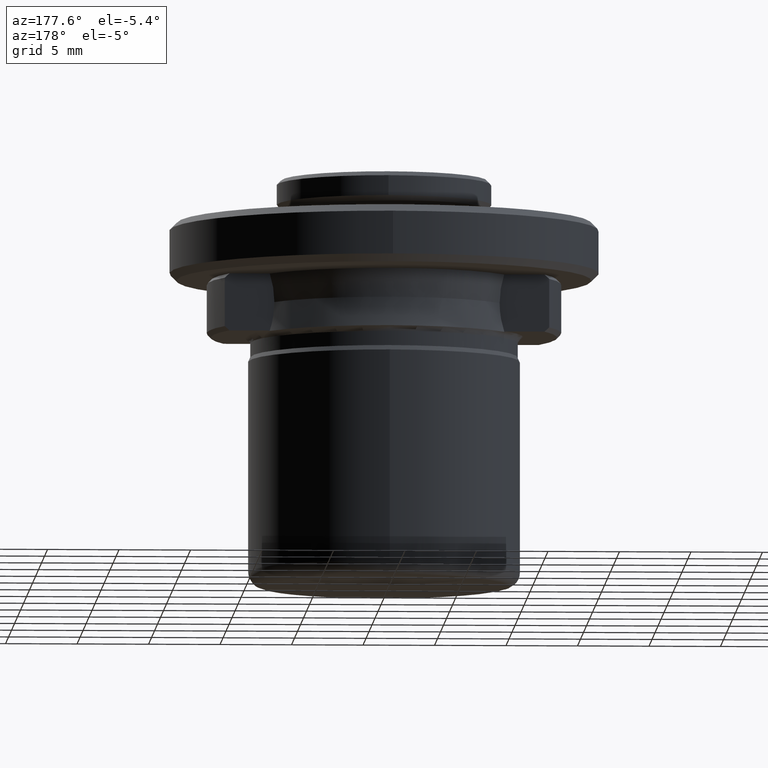
[diagram: clean part render]
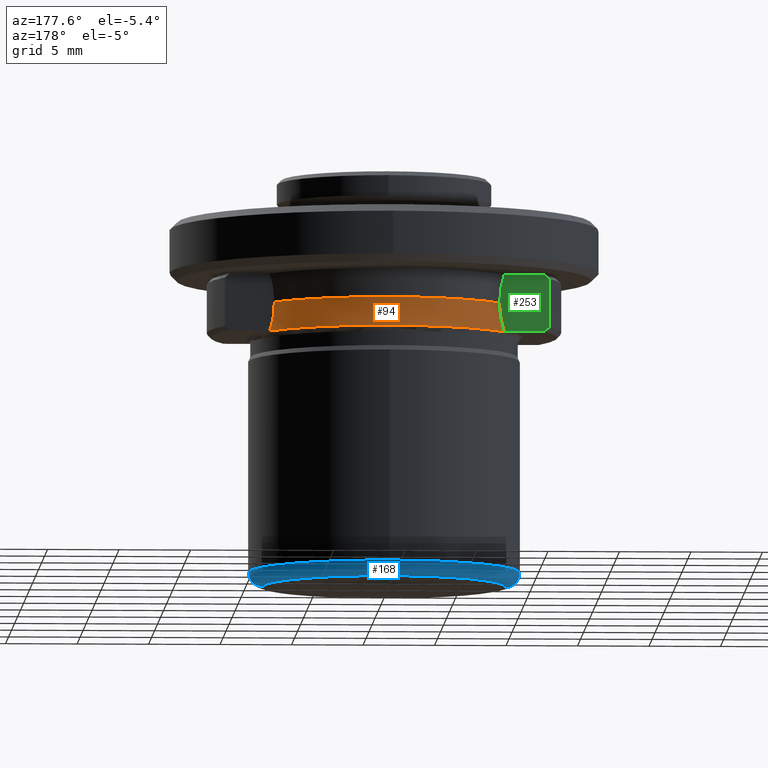
[diagram: same view with three faces highlighted in distinct colors, each labeled with its STEP entity id]
A machine part, auxiliary view with three faces highlighted in distinct colors.
Their STEP definitions:

[orange] entity #94 — the highlighted face is a freeform B-spline surface patch.
#23 = CARTESIAN_POINT ( 'NONE',  ( -3.939257820999999500, 11.49269213200000200, 6.309778704000000200 ) ) ;
#66 = CARTESIAN_POINT ( 'NONE',  ( 3.990071549000000100, 11.64093999100000000, 7.498750625000000400 ) ) ;
#94 = ADVANCED_FACE ( 'NONE', ( #203 ), #308, .F. ) ;
#122 = CARTESIAN_POINT ( 'NONE',  ( -7.877112416672511100, 4.999999997048597300, 6.749999999319589600 ) ) ;
#164 = CARTESIAN_POINT ( 'NONE',  ( 7.877112416672512800, 4.999999997048595500, 6.749999999319589600 ) ) ;
#176 = CARTESIAN_POINT ( 'NONE',  ( -8.471190540000002000, 5.020344791000000300, 4.013434577999998300 ) ) ;
#203 = FACE_OUTER_BOUND ( 'NONE', #1311, .T. ) ;
#238 = DIRECTION ( 'NONE',  ( 0.0000000000000000000, 9.026779162063304700E-017, 1.000000000000000000 ) ) ;
#243 = CARTESIAN_POINT ( 'NONE',  ( 8.096106681000000200, 4.798056047999999400, 5.125992605999997000 ) ) ;
#289 = VERTEX_POINT ( 'NONE', #1151 ) ;
#300 = CARTESIAN_POINT ( 'NONE',  ( -8.096106681000000200, 4.798056047999999400, 5.125992605999997000 ) ) ;
#308 =( BOUNDED_SURFACE ( )  B_SPLINE_SURFACE ( 3, 3, ( 
 ( #1183, #1625, #607, #176 ),
 ( #243, #1227, #875, #300 ),
 ( #1288, #1634, #23, #1318 ),
 ( #371, #66, #1030, #1381 ) ),
 .UNSPECIFIED., .F., .F., .F. ) 
 B_SPLINE_SURFACE_WITH_KNOTS ( ( 4, 4 ),
 ( 4, 4 ),
 ( 0.0000000000000000000, 1.000000000000000000 ),
 ( 0.0000000000000000000, 1.000000000000000000 ),
 .UNSPECIFIED. ) 
 GEOMETRIC_REPRESENTATION_ITEM ( )  RATIONAL_B_SPLINE_SURFACE ( (
 ( 1.000000000000000000, 0.6732206351089341500, 0.6732206351089341500, 1.000000000000000000),
 ( 0.9814036659297938900, 0.6607011992754922000, 0.6607011992754922000, 0.9814036659297938900),
 ( 0.9814036659297938900, 0.6607011992754922000, 0.6607011992754922000, 0.9814036659297938900),
 ( 1.000000000000000000, 0.6732206351089341500, 0.6732206351089341500, 1.000000000000000000) ) ) 
 REPRESENTATION_ITEM ( '' )  SURFACE ( )  );
#340 = CARTESIAN_POINT ( 'NONE',  ( -8.205382973227298000, 5.000000000000000900, 4.724235039559845400 ) ) ;
#371 = CARTESIAN_POINT ( 'NONE',  ( 8.058595508000001600, 4.775825521999999900, 7.498750625000000400 ) ) ;
#389 = CARTESIAN_POINT ( 'NONE',  ( -7.990552239294795600, 4.999999999999997300, 5.378193889154550400 ) ) ;
#401 = VERTEX_POINT ( 'NONE', #122 ) ;
#403 = CARTESIAN_POINT ( 'NONE',  ( 7.877112416672512800, 4.999999997048595500, 6.749999999319589600 ) ) ;
#409 = CARTESIAN_POINT ( 'NONE',  ( 8.205382974800770100, 5.000000000000000900, 4.724235040159770800 ) ) ;
#522 =( BOUNDED_CURVE ( )  B_SPLINE_CURVE ( 3, ( #1964, #844, #1133, #164 ),
 .UNSPECIFIED., .F., .F. ) 
 B_SPLINE_CURVE_WITH_KNOTS ( ( 4, 4 ),
 ( 0.0000000000000000000, 1.000000000000000000 ),
 .UNSPECIFIED. ) 
 CURVE ( )  GEOMETRIC_REPRESENTATION_ITEM ( )  RATIONAL_B_SPLINE_CURVE ( ( 0.9738585525977352400, 0.6725504043378097700, 0.6725504043378099900, 0.9738585525977354600 ) ) 
 REPRESENTATION_ITEM ( '' )  );
#574 = B_SPLINE_CURVE_WITH_KNOTS ( 'NONE', 3,
 ( #340, #389, #718, #1856 ),
 .UNSPECIFIED., .F., .F.,
 ( 4, 4 ),
 ( 1.213076539937994500E-013, 0.002059031618340729500 ),
 .UNSPECIFIED. ) ;
#607 = CARTESIAN_POINT ( 'NONE',  ( -4.194360708000000500, 12.23694881300000100, 4.013434577999999100 ) ) ;
#624 = ORIENTED_EDGE ( 'NONE', *, *, #2021, .T. ) ;
#638 = AXIS2_PLACEMENT_3D ( 'NONE', #1220, #238, #1385 ) ;
#640 = EDGE_CURVE ( 'NONE', #787, #401, #574, .T. ) ;
#718 = CARTESIAN_POINT ( 'NONE',  ( -7.877112415290540100, 5.000000000000000000, 6.061556053650237500 ) ) ;
#787 = VERTEX_POINT ( 'NONE', #1412 ) ;
#844 = CARTESIAN_POINT ( 'NONE',  ( -3.802041327538604200, 11.41995861482380700, 6.749999999011319800 ) ) ;
#875 = CARTESIAN_POINT ( 'NONE',  ( -4.008644545999999300, 11.69512627200000000, 5.125992605999998700 ) ) ;
#909 = CARTESIAN_POINT ( 'NONE',  ( 7.877112415290536500, 5.000000000000000000, 6.061559035861058900 ) ) ;
#915 = B_SPLINE_CURVE_WITH_KNOTS ( 'NONE', 3,
 ( #403, #909, #1393, #409 ),
 .UNSPECIFIED., .F., .F.,
 ( 4, 4 ),
 ( 8.673617379884035500E-019, 0.002058707678565891700 ),
 .UNSPECIFIED. ) ;
#1020 = ORIENTED_EDGE ( 'NONE', *, *, #1980, .T. ) ;
#1030 = CARTESIAN_POINT ( 'NONE',  ( -3.990071549000000100, 11.64093999100000000, 7.498750625000000400 ) ) ;
#1133 = CARTESIAN_POINT ( 'NONE',  ( 3.802041327538610900, 11.41995861482380400, 6.749999999011321500 ) ) ;
#1151 = CARTESIAN_POINT ( 'NONE',  ( 7.877112416672512800, 4.999999997048595500, 6.749999999319589600 ) ) ;
#1176 = VERTEX_POINT ( 'NONE', #1712 ) ;
#1183 = CARTESIAN_POINT ( 'NONE',  ( 8.471190540000002000, 5.020344791000000300, 4.013434577999998300 ) ) ;
#1216 = ORIENTED_EDGE ( 'NONE', *, *, #640, .T. ) ;
#1220 = CARTESIAN_POINT ( 'NONE',  ( 0.0000000000000000000, 0.0000000000000000000, 4.724235039728594800 ) ) ;
#1227 = CARTESIAN_POINT ( 'NONE',  ( 4.008644545999999300, 11.69512627200000000, 5.125992605999998700 ) ) ;
#1288 = CARTESIAN_POINT ( 'NONE',  ( 7.955968956000000400, 4.715005183999999800, 6.309778704000000200 ) ) ;
#1311 = EDGE_LOOP ( 'NONE', ( #624, #1020, #1216, #1880 ) ) ;
#1318 = CARTESIAN_POINT ( 'NONE',  ( -7.955968956000000400, 4.715005183999999800, 6.309778704000000200 ) ) ;
#1381 = CARTESIAN_POINT ( 'NONE',  ( -8.058595508000001600, 4.775825521999999900, 7.498750625000000400 ) ) ;
#1385 = DIRECTION ( 'NONE',  ( 0.0000000000000000000, -1.000000000000000000, 9.026779161851814800E-017 ) ) ;
#1393 = CARTESIAN_POINT ( 'NONE',  ( 7.990553860150956900, 5.000000000000000000, 5.378188955162049600 ) ) ;
#1412 = CARTESIAN_POINT ( 'NONE',  ( -8.205382973227298000, 5.000000000000000900, 4.724235039559845400 ) ) ;
#1600 = CIRCLE ( 'NONE', #638, 9.608762133607653400 ) ;
#1625 = CARTESIAN_POINT ( 'NONE',  ( 4.194360708000000500, 12.23694881300000100, 4.013434577999999100 ) ) ;
#1634 = CARTESIAN_POINT ( 'NONE',  ( 3.939257820999999500, 11.49269213200000200, 6.309778704000000200 ) ) ;
#1712 = CARTESIAN_POINT ( 'NONE',  ( 8.205382974800770100, 5.000000000000000900, 4.724235040159770800 ) ) ;
#1733 = EDGE_CURVE ( 'NONE', #401, #289, #522, .T. ) ;
#1856 = CARTESIAN_POINT ( 'NONE',  ( -7.877112416672511100, 4.999999997048597300, 6.749999999319589600 ) ) ;
#1880 = ORIENTED_EDGE ( 'NONE', *, *, #1733, .T. ) ;
#1964 = CARTESIAN_POINT ( 'NONE',  ( -7.877112416672511100, 4.999999997048597300, 6.749999999319589600 ) ) ;
#1980 = EDGE_CURVE ( 'NONE', #1176, #787, #1600, .T. ) ;
#2021 = EDGE_CURVE ( 'NONE', #289, #1176, #915, .T. ) ;

[blue] entity #168 — the highlighted toroidal blend (fillet) surface has major radius 8.5 mm and minor (blend) radius 1 mm.
#30 = DIRECTION ( 'NONE',  ( 1.000000000000000000, 0.0000000000000000000, 0.0000000000000000000 ) ) ;
#51 = CARTESIAN_POINT ( 'NONE',  ( 0.0000000000000000000, 2.364620801796248300E-016, -11.75000000000000000 ) ) ;
#86 = CARTESIAN_POINT ( 'NONE',  ( 1.163414459189985500E-015, 9.500000000000000000, -11.75000000000000000 ) ) ;
#110 = VERTEX_POINT ( 'NONE', #86 ) ;
#136 = CIRCLE ( 'NONE', #1553, 8.500000000000000000 ) ;
#160 = FACE_OUTER_BOUND ( 'NONE', #384, .T. ) ;
#168 = ADVANCED_FACE ( 'NONE', ( #160 ), #480, .T. ) ;
#292 = EDGE_CURVE ( 'NONE', #110, #884, #1578, .T. ) ;
#309 = AXIS2_PLACEMENT_3D ( 'NONE', #799, #323, #30 ) ;
#313 = ORIENTED_EDGE ( 'NONE', *, *, #1832, .F. ) ;
#319 = DIRECTION ( 'NONE',  ( 1.224646799147353200E-016, 1.000000000000000000, -0.0000000000000000000 ) ) ;
#323 = DIRECTION ( 'NONE',  ( 0.0000000000000000000, 0.0000000000000000000, 1.000000000000000000 ) ) ;
#383 = ORIENTED_EDGE ( 'NONE', *, *, #1929, .F. ) ;
#384 = EDGE_LOOP ( 'NONE', ( #313, #1173, #859, #383, #1652 ) ) ;
#473 = DIRECTION ( 'NONE',  ( -0.0000000000000000000, -0.0000000000000000000, -1.000000000000000000 ) ) ;
#480 = TOROIDAL_SURFACE ( 'NONE', #309, 8.500000000000000000, 1.000000000000000000 ) ;
#526 = AXIS2_PLACEMENT_3D ( 'NONE', #723, #1860, #901 ) ;
#629 = DIRECTION ( 'NONE',  ( 1.000000000000000000, 0.0000000000000000000, 0.0000000000000000000 ) ) ;
#712 = CARTESIAN_POINT ( 'NONE',  ( 8.500000000000000000, 2.364620801796248300E-016, -12.75000000000000200 ) ) ;
#723 = CARTESIAN_POINT ( 'NONE',  ( 8.500000000000000000, 2.364620801796248300E-016, -11.75000000000000000 ) ) ;
#768 = CARTESIAN_POINT ( 'NONE',  ( 0.0000000000000000000, 2.364620801796248300E-016, -11.75000000000000000 ) ) ;
#799 = CARTESIAN_POINT ( 'NONE',  ( 0.0000000000000000000, 2.364620801796248300E-016, -11.75000000000000000 ) ) ;
#802 = CARTESIAN_POINT ( 'NONE',  ( 9.500000000000001800, 2.364620801796248300E-016, -11.75000000000000000 ) ) ;
#859 = ORIENTED_EDGE ( 'NONE', *, *, #292, .F. ) ;
#884 = VERTEX_POINT ( 'NONE', #1589 ) ;
#901 = DIRECTION ( 'NONE',  ( 0.0000000000000000000, 0.0000000000000000000, -1.000000000000000000 ) ) ;
#981 = AXIS2_PLACEMENT_3D ( 'NONE', #51, #2075, #629 ) ;
#1012 = VERTEX_POINT ( 'NONE', #1704 ) ;
#1022 = CIRCLE ( 'NONE', #1050, 1.000000000000000900 ) ;
#1050 = AXIS2_PLACEMENT_3D ( 'NONE', #1314, #319, #1463 ) ;
#1131 = DIRECTION ( 'NONE',  ( 1.000000000000000000, 0.0000000000000000000, 0.0000000000000000000 ) ) ;
#1173 = ORIENTED_EDGE ( 'NONE', *, *, #1609, .T. ) ;
#1222 = CIRCLE ( 'NONE', #2089, 9.500000000000000000 ) ;
#1314 = CARTESIAN_POINT ( 'NONE',  ( -8.500000000000000000, 1.277411859454874900E-015, -11.75000000000000000 ) ) ;
#1463 = DIRECTION ( 'NONE',  ( -1.000000000000000000, 1.224646799147351500E-016, 0.0000000000000000000 ) ) ;
#1553 = AXIS2_PLACEMENT_3D ( 'NONE', #1935, #473, #1131 ) ;
#1563 = DIRECTION ( 'NONE',  ( 1.000000000000000000, 0.0000000000000000000, 0.0000000000000000000 ) ) ;
#1578 = CIRCLE ( 'NONE', #981, 9.500000000000000000 ) ;
#1589 = CARTESIAN_POINT ( 'NONE',  ( -9.500000000000001800, 1.399876539369610000E-015, -11.75000000000000000 ) ) ;
#1609 = EDGE_CURVE ( 'NONE', #1012, #884, #1022, .T. ) ;
#1647 = CIRCLE ( 'NONE', #526, 1.000000000000000900 ) ;
#1652 = ORIENTED_EDGE ( 'NONE', *, *, #1968, .F. ) ;
#1704 = CARTESIAN_POINT ( 'NONE',  ( -8.500000000000000000, 1.338644199412242400E-015, -12.75000000000000200 ) ) ;
#1780 = VERTEX_POINT ( 'NONE', #802 ) ;
#1832 = EDGE_CURVE ( 'NONE', #1012, #1893, #136, .T. ) ;
#1860 = DIRECTION ( 'NONE',  ( 0.0000000000000000000, -1.000000000000000000, 0.0000000000000000000 ) ) ;
#1889 = DIRECTION ( 'NONE',  ( 0.0000000000000000000, 0.0000000000000000000, 1.000000000000000000 ) ) ;
#1893 = VERTEX_POINT ( 'NONE', #712 ) ;
#1929 = EDGE_CURVE ( 'NONE', #1780, #110, #1222, .T. ) ;
#1935 = CARTESIAN_POINT ( 'NONE',  ( 0.0000000000000000000, 2.364620801796248300E-016, -12.75000000000000200 ) ) ;
#1968 = EDGE_CURVE ( 'NONE', #1893, #1780, #1647, .T. ) ;
#2075 = DIRECTION ( 'NONE',  ( 0.0000000000000000000, 0.0000000000000000000, 1.000000000000000000 ) ) ;
#2089 = AXIS2_PLACEMENT_3D ( 'NONE', #768, #1889, #1563 ) ;

[green] entity #253 — the highlighted planar face has unit normal (0, -1, 0).
#15 = DIRECTION ( 'NONE',  ( 0.0000000000000000000, 0.0000000000000000000, -1.000000000000000000 ) ) ;
#27 = ORIENTED_EDGE ( 'NONE', *, *, #391, .F. ) ;
#36 = VECTOR ( 'NONE', #1056, 1000.000000000000000 ) ;
#79 = LINE ( 'NONE', #2028, #36 ) ;
#105 = CARTESIAN_POINT ( 'NONE',  ( 0.0000000000000000000, 5.000000006628000400, 8.750000000000000000 ) ) ;
#121 = CARTESIAN_POINT ( 'NONE',  ( -11.12828599798885600, 5.000000000000000000, 8.650135423376600100 ) ) ;
#122 = CARTESIAN_POINT ( 'NONE',  ( -7.877112416672511100, 4.999999997048597300, 6.749999999319589600 ) ) ;
#154 = B_SPLINE_CURVE_WITH_KNOTS ( 'NONE', 3,
 ( #1259, #121, #1580, #599 ),
 .UNSPECIFIED., .F., .F.,
 ( 4, 4 ),
 ( 0.0000000000000000000, 0.0004449661644516557200 ),
 .UNSPECIFIED. ) ;
#156 = CARTESIAN_POINT ( 'NONE',  ( -8.259008784567335200, 5.000000000000000000, 4.741517755171558200 ) ) ;
#170 = DIRECTION ( 'NONE',  ( 0.0000000000000000000, -1.000000000000000000, 0.0000000000000000000 ) ) ;
#174 = EDGE_LOOP ( 'NONE', ( #1853, #317, #600, #27, #1649, #461, #806, #709 ) ) ;
#253 = ADVANCED_FACE ( 'NONE', ( #1668 ), #1142, .F. ) ;
#260 = CARTESIAN_POINT ( 'NONE',  ( -8.370334521211765000, 4.999999999999999100, 4.749999999889213100 ) ) ;
#286 = CARTESIAN_POINT ( 'NONE',  ( -11.01862060233275300, 5.000000003314000600, 8.749999999533397200 ) ) ;
#317 = ORIENTED_EDGE ( 'NONE', *, *, #1744, .T. ) ;
#318 = CARTESIAN_POINT ( 'NONE',  ( -7.877112415001547200, 5.000000000000000000, 7.429352586293858500 ) ) ;
#340 = CARTESIAN_POINT ( 'NONE',  ( -8.205382973227298000, 5.000000000000000900, 4.724235039559845400 ) ) ;
#373 = LINE ( 'NONE', #105, #816 ) ;
#389 = CARTESIAN_POINT ( 'NONE',  ( -7.990552239294795600, 4.999999999999997300, 5.378193889154550400 ) ) ;
#391 = EDGE_CURVE ( 'NONE', #2068, #787, #800, .T. ) ;
#398 = LINE ( 'NONE', #883, #1278 ) ;
#401 = VERTEX_POINT ( 'NONE', #122 ) ;
#461 = ORIENTED_EDGE ( 'NONE', *, *, #625, .F. ) ;
#524 = VERTEX_POINT ( 'NONE', #688 ) ;
#574 = B_SPLINE_CURVE_WITH_KNOTS ( 'NONE', 3,
 ( #340, #389, #718, #1856 ),
 .UNSPECIFIED., .F., .F.,
 ( 4, 4 ),
 ( 1.213076539937994500E-013, 0.002059031618340729500 ),
 .UNSPECIFIED. ) ;
#599 = CARTESIAN_POINT ( 'NONE',  ( -11.34724636108874700, 5.000000002381489700, 8.449999999876746800 ) ) ;
#600 = ORIENTED_EDGE ( 'NONE', *, *, #640, .F. ) ;
#622 = CARTESIAN_POINT ( 'NONE',  ( -11.34724636062125900, 5.000000002381489700, 5.049999999695453200 ) ) ;
#625 = EDGE_CURVE ( 'NONE', #1548, #1954, #1078, .T. ) ;
#627 = CARTESIAN_POINT ( 'NONE',  ( -7.877112416672511100, 4.999999997048597300, 6.749999999319589600 ) ) ;
#640 = EDGE_CURVE ( 'NONE', #787, #401, #574, .T. ) ;
#688 = CARTESIAN_POINT ( 'NONE',  ( -11.34724636108874700, 5.000000002381489700, 8.449999999876746800 ) ) ;
#695 = CARTESIAN_POINT ( 'NONE',  ( -11.23782482176562400, 5.000000000000000000, 4.949868292389001400 ) ) ;
#697 = CARTESIAN_POINT ( 'NONE',  ( -8.196975812969103700, 5.000000000442648600, 8.750000000509832200 ) ) ;
#709 = ORIENTED_EDGE ( 'NONE', *, *, #1460, .F. ) ;
#718 = CARTESIAN_POINT ( 'NONE',  ( -7.877112415290540100, 5.000000000000000000, 6.061556053650237500 ) ) ;
#754 = DIRECTION ( 'NONE',  ( 1.000000000000000000, 0.0000000000000000000, 0.0000000000000000000 ) ) ;
#756 = AXIS2_PLACEMENT_3D ( 'NONE', #1514, #170, #15 ) ;
#775 = EDGE_CURVE ( 'NONE', #914, #1256, #373, .T. ) ;
#787 = VERTEX_POINT ( 'NONE', #1412 ) ;
#800 = B_SPLINE_CURVE_WITH_KNOTS ( 'NONE', 3,
 ( #1768, #1598, #156, #1953 ),
 .UNSPECIFIED., .F., .F.,
 ( 4, 4 ),
 ( 0.0000000000000000000, 0.0001669516244480452800 ),
 .UNSPECIFIED. ) ;
#806 = ORIENTED_EDGE ( 'NONE', *, *, #1915, .T. ) ;
#816 = VECTOR ( 'NONE', #754, 1000.000000000000000 ) ;
#879 = CARTESIAN_POINT ( 'NONE',  ( -11.34724636062125900, 5.000000002381489700, 5.049999999695453200 ) ) ;
#883 = CARTESIAN_POINT ( 'NONE',  ( -11.34724635990468900, 5.000000004762981100, 6.750000000000000900 ) ) ;
#914 = VERTEX_POINT ( 'NONE', #286 ) ;
#1029 = CARTESIAN_POINT ( 'NONE',  ( -11.12828599690503000, 5.000000000000000000, 4.849864575634641500 ) ) ;
#1043 = DIRECTION ( 'NONE',  ( 0.0000000000000000000, 0.0000000000000000000, 1.000000000000000000 ) ) ;
#1054 = EDGE_CURVE ( 'NONE', #2068, #1954, #79, .T. ) ;
#1056 = DIRECTION ( 'NONE',  ( -1.000000000000000000, -0.0000000000000000000, -0.0000000000000000000 ) ) ;
#1078 = B_SPLINE_CURVE_WITH_KNOTS ( 'NONE', 3,
 ( #879, #695, #1029, #1997 ),
 .UNSPECIFIED., .F., .F.,
 ( 4, 4 ),
 ( 3.238883885890238900E-013, 0.0004449661656181250400 ),
 .UNSPECIFIED. ) ;
#1142 = PLANE ( 'NONE',  #756 ) ;
#1256 = VERTEX_POINT ( 'NONE', #697 ) ;
#1259 = CARTESIAN_POINT ( 'NONE',  ( -11.01862060233275300, 5.000000003314000600, 8.749999999533397200 ) ) ;
#1278 = VECTOR ( 'NONE', #1043, 1000.000000000000000 ) ;
#1294 = B_SPLINE_CURVE_WITH_KNOTS ( 'NONE', 3,
 ( #1643, #1338, #318, #627 ),
 .UNSPECIFIED., .F., .F.,
 ( 4, 4 ),
 ( 5.980985295301940700E-013, 0.002031991267083052600 ),
 .UNSPECIFIED. ) ;
#1338 = CARTESIAN_POINT ( 'NONE',  ( -7.987554438100409500, 5.000000000000000000, 8.103832765032985100 ) ) ;
#1412 = CARTESIAN_POINT ( 'NONE',  ( -8.205382973227298000, 5.000000000000000900, 4.724235039559845400 ) ) ;
#1460 = EDGE_CURVE ( 'NONE', #914, #524, #154, .T. ) ;
#1514 = CARTESIAN_POINT ( 'NONE',  ( -11.34724636200000000, 5.000000000000000000, 8.750000000000000000 ) ) ;
#1548 = VERTEX_POINT ( 'NONE', #622 ) ;
#1580 = CARTESIAN_POINT ( 'NONE',  ( -11.23782482277525400, 5.000000000000000000, 8.550131706688427300 ) ) ;
#1598 = CARTESIAN_POINT ( 'NONE',  ( -8.314009201291112200, 5.000000001154024400, 4.749999998633676900 ) ) ;
#1643 = CARTESIAN_POINT ( 'NONE',  ( -8.196975812969103700, 5.000000000442648600, 8.750000000509832200 ) ) ;
#1649 = ORIENTED_EDGE ( 'NONE', *, *, #1054, .T. ) ;
#1668 = FACE_OUTER_BOUND ( 'NONE', #174, .T. ) ;
#1744 = EDGE_CURVE ( 'NONE', #1256, #401, #1294, .T. ) ;
#1768 = CARTESIAN_POINT ( 'NONE',  ( -8.370334521211765000, 4.999999999999999100, 4.749999999889213100 ) ) ;
#1853 = ORIENTED_EDGE ( 'NONE', *, *, #775, .T. ) ;
#1856 = CARTESIAN_POINT ( 'NONE',  ( -7.877112416672511100, 4.999999997048597300, 6.749999999319589600 ) ) ;
#1915 = EDGE_CURVE ( 'NONE', #1548, #524, #398, .T. ) ;
#1953 = CARTESIAN_POINT ( 'NONE',  ( -8.205382973227298000, 5.000000000000000900, 4.724235039559845400 ) ) ;
#1954 = VERTEX_POINT ( 'NONE', #2010 ) ;
#1997 = CARTESIAN_POINT ( 'NONE',  ( -11.01862060325745700, 4.999999999999999100, 4.749999999939245900 ) ) ;
#2010 = CARTESIAN_POINT ( 'NONE',  ( -11.01862060325745700, 4.999999999999999100, 4.749999999939245900 ) ) ;
#2028 = CARTESIAN_POINT ( 'NONE',  ( -10.23516726099999900, 5.000000000000000000, 4.750000000000000000 ) ) ;
#2068 = VERTEX_POINT ( 'NONE', #260 ) ;